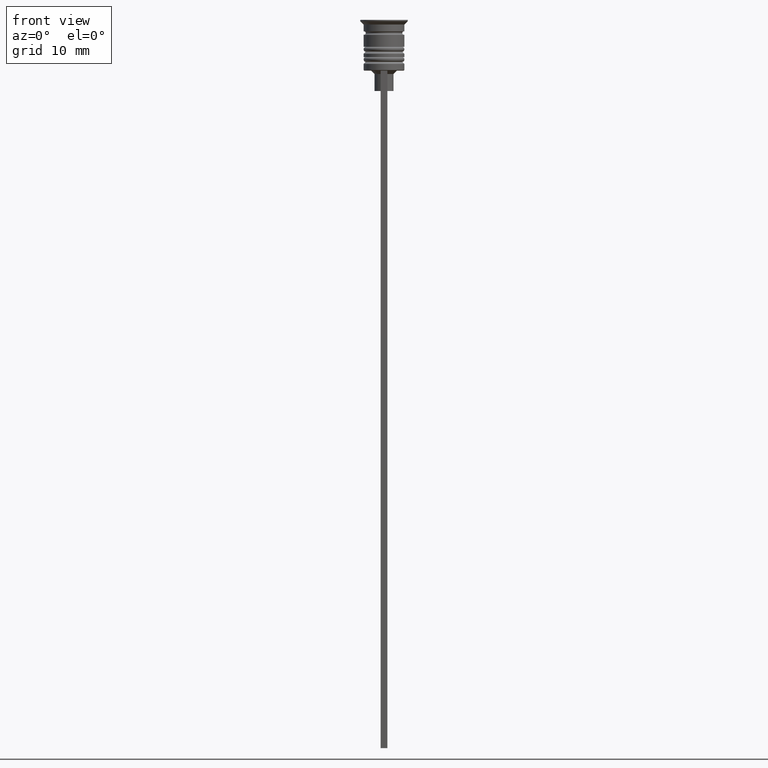
[diagram: clean part render]
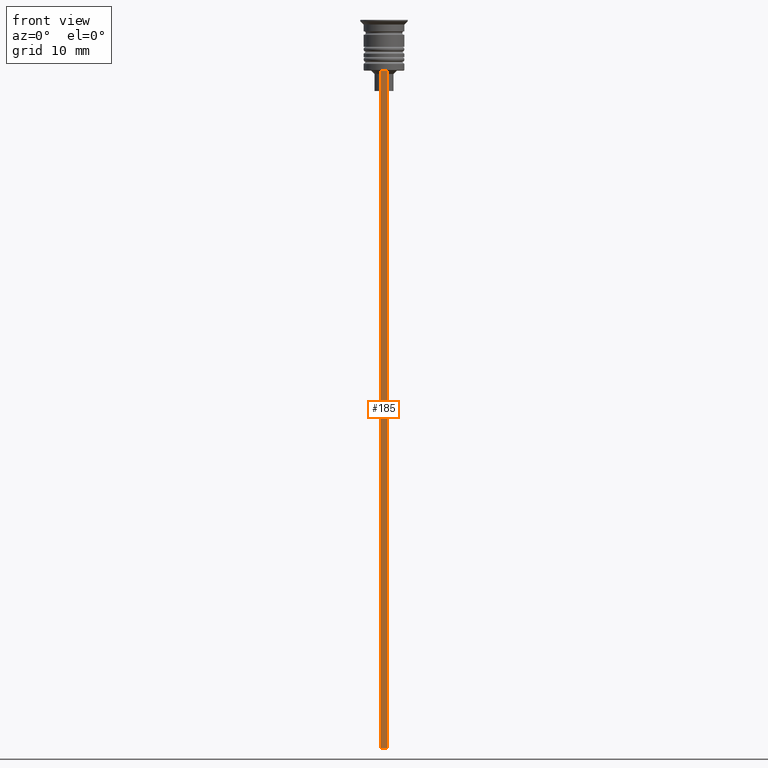
[diagram: same view with one face highlighted and labeled with its STEP entity id]
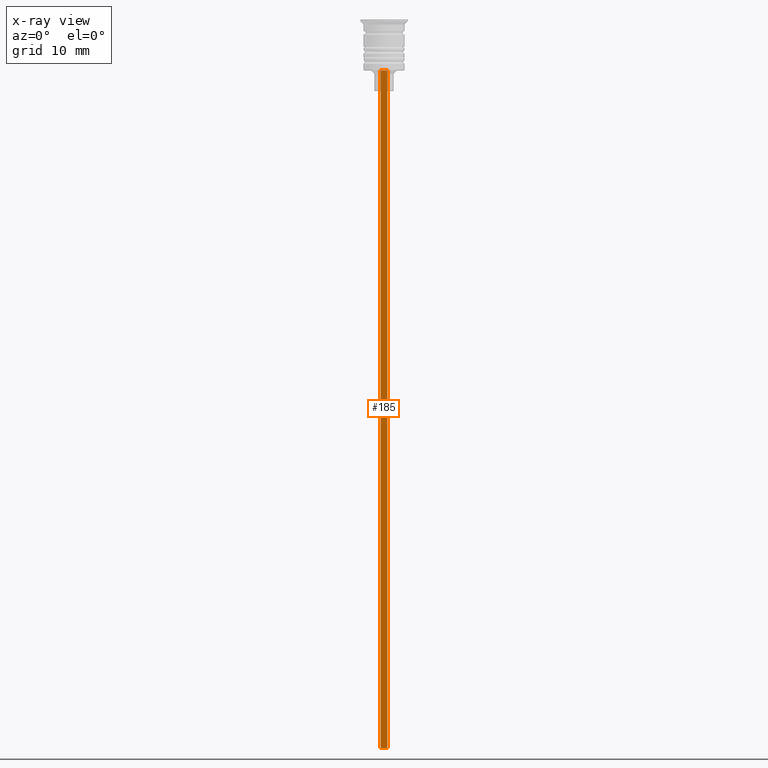
[diagram: x-ray of the same camera — body ghosted, the highlighted face saturated]
A machine part, front view. The second image highlights one B-rep face of the part: STEP entity #185.
The next image is the same camera in x-ray: the body ghosted, the highlighted face saturated — about 0% of this face is hidden behind the body in this view.
In plain terms, the highlighted planar face has unit normal (0, -1, -0).
Its self-contained STEP definition (entity closure, byte-faithful):
#19 = CARTESIAN_POINT ( 'NONE',  ( -0.5000000000000001110, -3.000000000000000000, -107.5000000000000000 ) ) ;
#39 = CARTESIAN_POINT ( 'NONE',  ( 0.4999999999999998890, -3.000000000000000000, -1.417237469701779329 ) ) ;
#53 = CARTESIAN_POINT ( 'NONE',  ( 0.4999999999999998890, -3.000000000000000000, -7.500000000000000000 ) ) ;
#73 = VERTEX_POINT ( 'NONE', #19 ) ;
#97 = EDGE_CURVE ( 'NONE', #1794, #2267, #1995, .T. ) ;
#180 = ORIENTED_EDGE ( 'NONE', *, *, #1505, .F. ) ;
#185 = ADVANCED_FACE ( 'NONE', ( #619 ), #1740, .T. ) ;
#210 = CARTESIAN_POINT ( 'NONE',  ( -0.5000000000000001110, -3.000000000000000000, -1.417237469701779329 ) ) ;
#266 = CARTESIAN_POINT ( 'NONE',  ( -0.5000000000000001110, -3.000000000000000000, -7.500000000000000000 ) ) ;
#366 = DIRECTION ( 'NONE',  ( 0.000000000000000000, 0.000000000000000000, -1.000000000000000000 ) ) ;
#421 = CARTESIAN_POINT ( 'NONE',  ( 0.4999999999999998890, -3.000000000000000000, -107.5000000000000000 ) ) ;
#449 = DIRECTION ( 'NONE',  ( 0.000000000000000000, 0.000000000000000000, -1.000000000000000000 ) ) ;
#466 = CARTESIAN_POINT ( 'NONE',  ( 0.4999999999999998890, -3.000000000000000000, -107.5000000000000000 ) ) ;
#472 = LINE ( 'NONE', #1154, #1383 ) ;
#499 = EDGE_CURVE ( 'NONE', #1390, #73, #1274, .T. ) ;
#607 = CARTESIAN_POINT ( 'NONE',  ( 0.4999999999999998890, -3.000000000000000000, -1.417237469701779329 ) ) ;
#619 = FACE_OUTER_BOUND ( 'NONE', #2055, .T. ) ;
#871 = VECTOR ( 'NONE', #366, 1000.000000000000000 ) ;
#947 = DIRECTION ( 'NONE',  ( 0.000000000000000000, 0.000000000000000000, -1.000000000000000000 ) ) ;
#1039 = EDGE_CURVE ( 'NONE', #2267, #73, #1676, .T. ) ;
#1080 = AXIS2_PLACEMENT_3D ( 'NONE', #607, #2254, #449 ) ;
#1154 = CARTESIAN_POINT ( 'NONE',  ( 0.4999999999999998890, -3.000000000000000000, -7.500000000000000000 ) ) ;
#1274 = LINE ( 'NONE', #210, #871 ) ;
#1312 = VECTOR ( 'NONE', #947, 1000.000000000000000 ) ;
#1383 = VECTOR ( 'NONE', #2255, 1000.000000000000000 ) ;
#1390 = VERTEX_POINT ( 'NONE', #266 ) ;
#1434 = ORIENTED_EDGE ( 'NONE', *, *, #1039, .F. ) ;
#1459 = VECTOR ( 'NONE', #1533, 1000.000000000000000 ) ;
#1505 = EDGE_CURVE ( 'NONE', #1390, #1794, #472, .T. ) ;
#1533 = DIRECTION ( 'NONE',  ( -1.000000000000000000, 0.000000000000000000, 0.000000000000000000 ) ) ;
#1556 = ORIENTED_EDGE ( 'NONE', *, *, #499, .T. ) ;
#1676 = LINE ( 'NONE', #421, #1459 ) ;
#1740 = PLANE ( 'NONE',  #1080 ) ;
#1784 = ORIENTED_EDGE ( 'NONE', *, *, #97, .F. ) ;
#1794 = VERTEX_POINT ( 'NONE', #53 ) ;
#1995 = LINE ( 'NONE', #39, #1312 ) ;
#2055 = EDGE_LOOP ( 'NONE', ( #180, #1556, #1434, #1784 ) ) ;
#2254 = DIRECTION ( 'NONE',  ( 0.000000000000000000, -1.000000000000000000, -0.000000000000000000 ) ) ;
#2255 = DIRECTION ( 'NONE',  ( 1.000000000000000000, 0.000000000000000000, 0.000000000000000000 ) ) ;
#2267 = VERTEX_POINT ( 'NONE', #466 ) ;